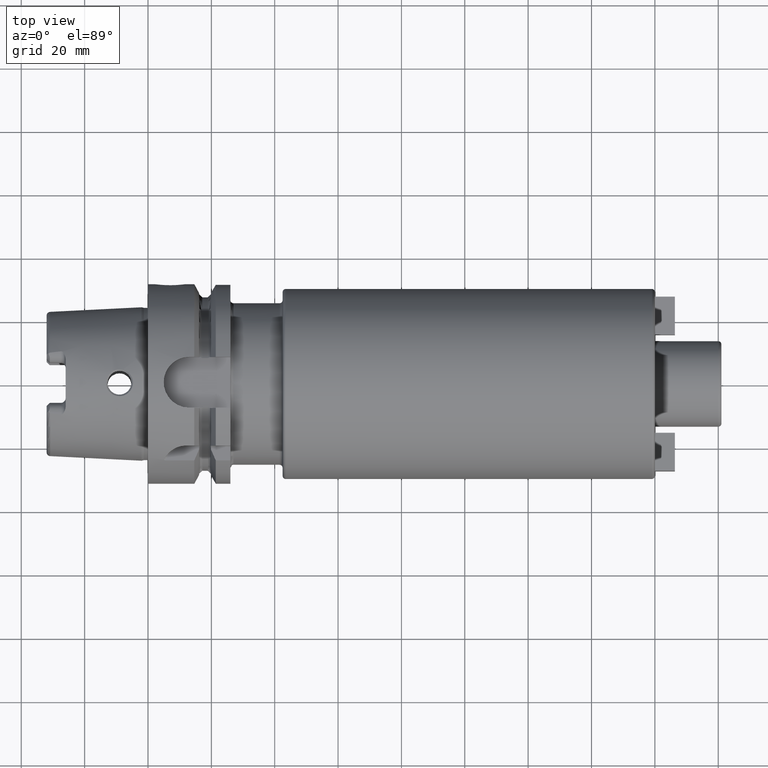
[diagram: clean part render]
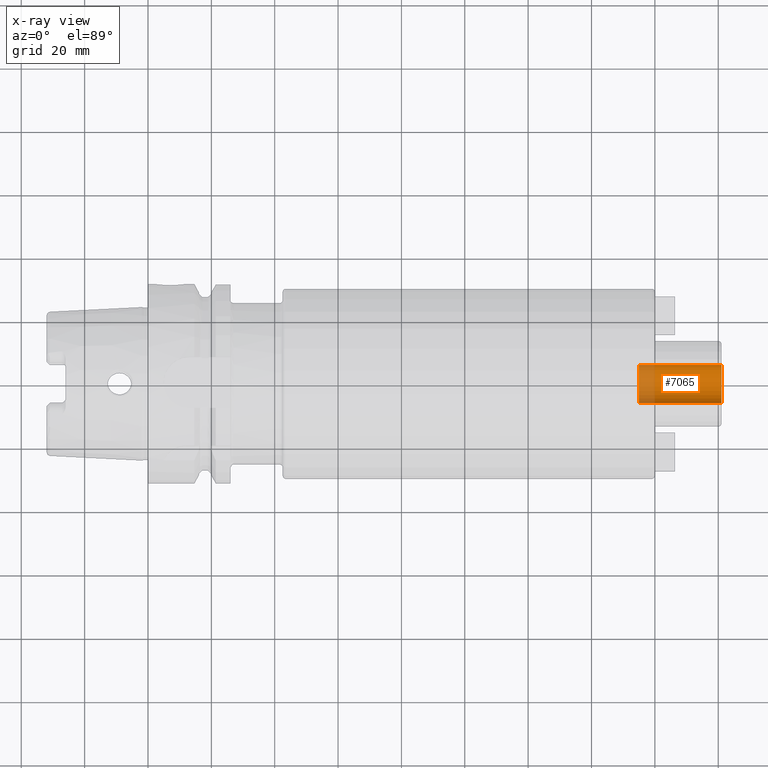
[diagram: x-ray — body ghosted, one internal face saturated and labeled with its STEP entity id]
A machine part, top view, then the same camera in x-ray: the body is ghosted and one INTERNAL B-rep face — a face not visible from any outside direction — is saturated and labeled: STEP entity #7065.
In plain terms, the highlighted cylindrical surface (edge-blend (fillet) strip) has radius 6 mm, axis along (1, 0, 0).
Its self-contained STEP definition (entity closure, byte-faithful):
#7000=CARTESIAN_POINT('',(1.81E2,0.E0,0.E0));
#7001=DIRECTION('',(-1.E0,0.E0,0.E0));
#7002=DIRECTION('',(0.E0,1.E0,0.E0));
#7003=AXIS2_PLACEMENT_3D('',#7000,#7001,#7002);
#7010=DIRECTION('',(-1.E0,0.E0,0.E0));
#7011=VECTOR('',#7010,2.6E1);
#7012=CARTESIAN_POINT('',(1.81E2,6.E0,0.E0));
#7013=LINE('',#7012,#7011);
#7014=DIRECTION('',(-1.E0,0.E0,0.E0));
#7015=VECTOR('',#7014,2.6E1);
#7016=CARTESIAN_POINT('',(1.81E2,-6.E0,0.E0));
#7017=LINE('',#7016,#7015);
#7018=CARTESIAN_POINT('',(1.55E2,0.E0,0.E0));
#7019=DIRECTION('',(1.E0,0.E0,0.E0));
#7020=DIRECTION('',(0.E0,-1.E0,0.E0));
#7021=AXIS2_PLACEMENT_3D('',#7018,#7019,#7020);
#7038=CARTESIAN_POINT('',(1.55E2,-6.E0,0.E0));
#7039=CARTESIAN_POINT('',(1.55E2,6.E0,0.E0));
#7040=VERTEX_POINT('',#7038);
#7041=VERTEX_POINT('',#7039);
#7042=CARTESIAN_POINT('',(1.81E2,-6.E0,0.E0));
#7043=CARTESIAN_POINT('',(1.81E2,6.E0,0.E0));
#7044=VERTEX_POINT('',#7042);
#7045=VERTEX_POINT('',#7043);
#7050=CARTESIAN_POINT('',(1.420823913851E2,0.E0,0.E0));
#7051=DIRECTION('',(1.E0,0.E0,0.E0));
#7052=DIRECTION('',(0.E0,-1.E0,0.E0));
#7053=AXIS2_PLACEMENT_3D('',#7050,#7051,#7052);
#7054=CYLINDRICAL_SURFACE('',#7053,6.E0);
#7056=ORIENTED_EDGE('',*,*,#7055,.T.);
#7058=ORIENTED_EDGE('',*,*,#7057,.T.);
#7060=ORIENTED_EDGE('',*,*,#7059,.T.);
#7062=ORIENTED_EDGE('',*,*,#7061,.F.);
#7063=EDGE_LOOP('',(#7056,#7058,#7060,#7062));
#7064=FACE_OUTER_BOUND('',#7063,.F.);
#7065=ADVANCED_FACE('',(#7064),#7054,.F.);
#7004=CIRCLE('',#7003,6.E0);
#7022=CIRCLE('',#7021,6.E0);
#7055=EDGE_CURVE('',#7045,#7044,#7004,.T.);
#7057=EDGE_CURVE('',#7044,#7040,#7017,.T.);
#7059=EDGE_CURVE('',#7040,#7041,#7022,.T.);
#7061=EDGE_CURVE('',#7045,#7041,#7013,.T.);